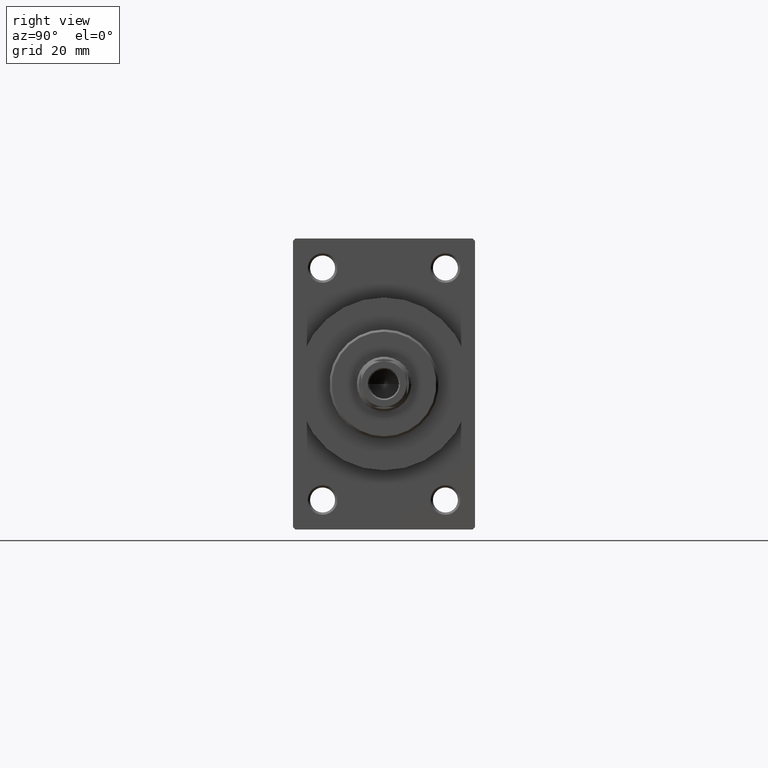
[diagram: clean part render]
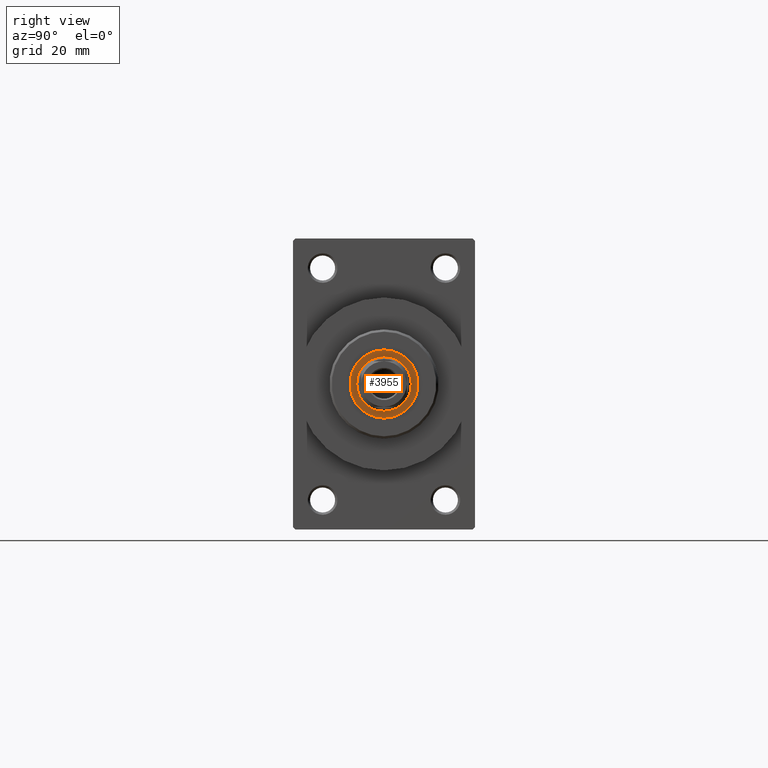
[diagram: same view with one face highlighted and labeled with its STEP entity id]
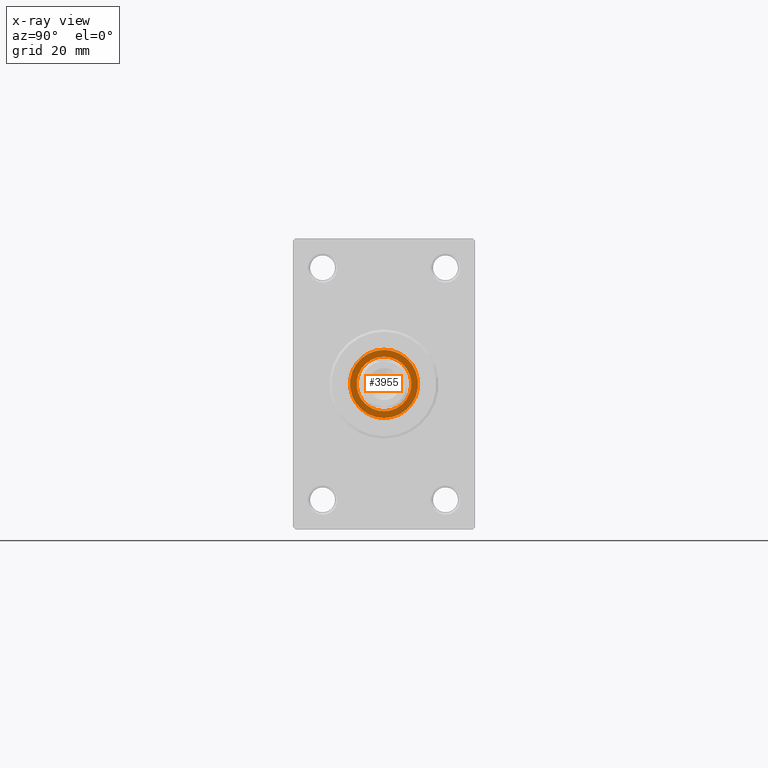
[diagram: x-ray of the same camera — body ghosted, the highlighted face saturated]
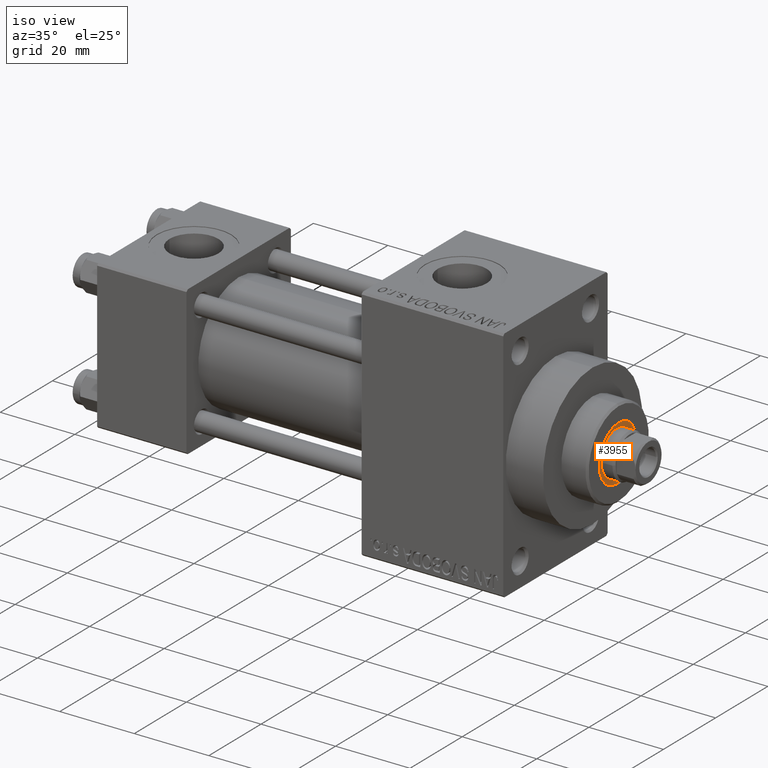
[diagram: same view with one face highlighted and labeled with its STEP entity id]
A machine part, right view. The second image highlights one B-rep face of the part: STEP entity #3955.
The next image is the same camera in x-ray: the body ghosted, the highlighted face saturated — about 0% of this face is hidden behind the body in this view.
A second angle (iso view) of the same face is appended — the face is thin or edge-on in the first view.
In plain terms, the highlighted planar face has unit normal (1, -0, -0).
Its self-contained STEP definition (entity closure, byte-faithful):
#1330 = DIRECTION ( 'NONE',  ( 1.000000000000000000, 0.000000000000000000, 0.000000000000000000 ) ) ;
#1416 = VERTEX_POINT ( 'NONE', #47062 ) ;
#2992 = CARTESIAN_POINT ( 'NONE',  ( 0.000000000000000000, 0.000000000000000000, 49.75999999999999801 ) ) ;
#3891 = EDGE_CURVE ( 'NONE', #28023, #4281, #9288, .T. ) ;
#3955 = ADVANCED_FACE ( 'NONE', ( #29905, #11803 ), #26332, .T. ) ;
#4281 = VERTEX_POINT ( 'NONE', #44834 ) ;
#5069 = CARTESIAN_POINT ( 'NONE',  ( 0.000000000000000000, 0.000000000000000000, 49.75999999999999801 ) ) ;
#9288 = CIRCLE ( 'NONE', #36672, 6.000000000000000888 ) ;
#10507 = EDGE_CURVE ( 'NONE', #4281, #28023, #35260, .T. ) ;
#11803 = FACE_BOUND ( 'NONE', #14016, .T. ) ;
#12284 = CARTESIAN_POINT ( 'NONE',  ( 0.000000000000000000, 0.000000000000000000, 49.75999999999999801 ) ) ;
#12903 = CARTESIAN_POINT ( 'NONE',  ( 0.000000000000000000, 0.000000000000000000, 49.75999999999999801 ) ) ;
#13139 = DIRECTION ( 'NONE',  ( 1.000000000000000000, 0.000000000000000000, 0.000000000000000000 ) ) ;
#13973 = AXIS2_PLACEMENT_3D ( 'NONE', #5069, #18891, #40779 ) ;
#14016 = EDGE_LOOP ( 'NONE', ( #44675, #35185 ) ) ;
#18631 = ORIENTED_EDGE ( 'NONE', *, *, #33475, .T. ) ;
#18891 = DIRECTION ( 'NONE',  ( -0.000000000000000000, -0.000000000000000000, -1.000000000000000000 ) ) ;
#20298 = ORIENTED_EDGE ( 'NONE', *, *, #40881, .T. ) ;
#21106 = DIRECTION ( 'NONE',  ( 1.000000000000000000, 0.000000000000000000, 0.000000000000000000 ) ) ;
#22233 = AXIS2_PLACEMENT_3D ( 'NONE', #40835, #22762, #37276 ) ;
#22762 = DIRECTION ( 'NONE',  ( 0.000000000000000000, 0.000000000000000000, 1.000000000000000000 ) ) ;
#24575 = CARTESIAN_POINT ( 'NONE',  ( -6.000000000000000888, 7.347880794884120722E-16, 49.75999999999999801 ) ) ;
#26332 = PLANE ( 'NONE',  #22233 ) ;
#28023 = VERTEX_POINT ( 'NONE', #24575 ) ;
#28136 = DIRECTION ( 'NONE',  ( 0.000000000000000000, 0.000000000000000000, 1.000000000000000000 ) ) ;
#29691 = EDGE_LOOP ( 'NONE', ( #20298, #18631 ) ) ;
#29905 = FACE_OUTER_BOUND ( 'NONE', #29691, .T. ) ;
#30101 = CARTESIAN_POINT ( 'NONE',  ( -7.500000000000000888, 9.184850993605149917E-16, 49.75999999999999801 ) ) ;
#32173 = CIRCLE ( 'NONE', #45091, 7.500000000000000888 ) ;
#33475 = EDGE_CURVE ( 'NONE', #37893, #1416, #36579, .T. ) ;
#33961 = DIRECTION ( 'NONE',  ( -0.000000000000000000, -0.000000000000000000, -1.000000000000000000 ) ) ;
#35185 = ORIENTED_EDGE ( 'NONE', *, *, #3891, .T. ) ;
#35260 = CIRCLE ( 'NONE', #13973, 6.000000000000000888 ) ;
#36579 = CIRCLE ( 'NONE', #40374, 7.500000000000000888 ) ;
#36672 = AXIS2_PLACEMENT_3D ( 'NONE', #12284, #33961, #1330 ) ;
#37276 = DIRECTION ( 'NONE',  ( 1.000000000000000000, 0.000000000000000000, -0.000000000000000000 ) ) ;
#37893 = VERTEX_POINT ( 'NONE', #30101 ) ;
#40374 = AXIS2_PLACEMENT_3D ( 'NONE', #12903, #28136, #13139 ) ;
#40779 = DIRECTION ( 'NONE',  ( 1.000000000000000000, 0.000000000000000000, 0.000000000000000000 ) ) ;
#40835 = CARTESIAN_POINT ( 'NONE',  ( 0.000000000000000000, 0.000000000000000000, 49.75999999999999801 ) ) ;
#40881 = EDGE_CURVE ( 'NONE', #1416, #37893, #32173, .T. ) ;
#42745 = DIRECTION ( 'NONE',  ( 0.000000000000000000, 0.000000000000000000, 1.000000000000000000 ) ) ;
#44675 = ORIENTED_EDGE ( 'NONE', *, *, #10507, .T. ) ;
#44834 = CARTESIAN_POINT ( 'NONE',  ( 6.000000000000000888, 0.000000000000000000, 49.75999999999999801 ) ) ;
#45091 = AXIS2_PLACEMENT_3D ( 'NONE', #2992, #42745, #21106 ) ;
#47062 = CARTESIAN_POINT ( 'NONE',  ( 7.500000000000000888, 0.000000000000000000, 49.75999999999999801 ) ) ;